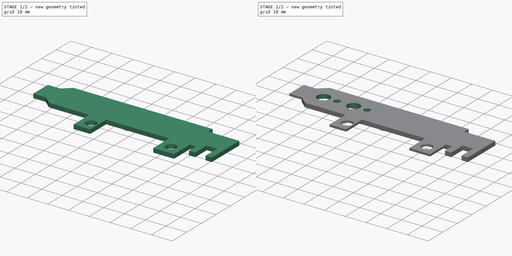
[diagram: build sequence overview — one tinted view per stage of 2, left to right]
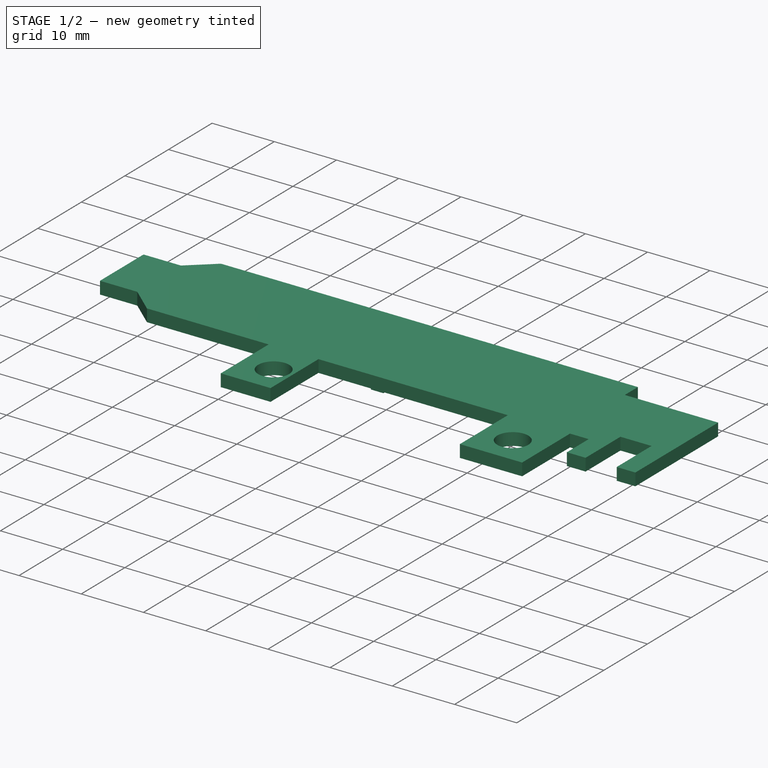
[diagram: stage 1 of 2 — iso view after this stage's code; geometry added in this stage tinted green]
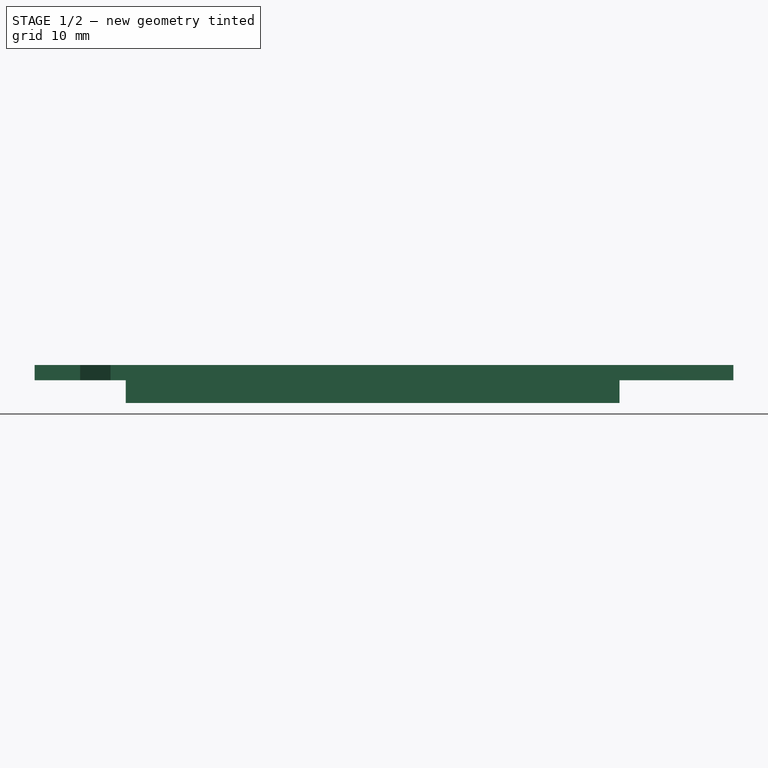
[diagram: stage 1 of 2 — front view after this stage's code; geometry added in this stage tinted green]
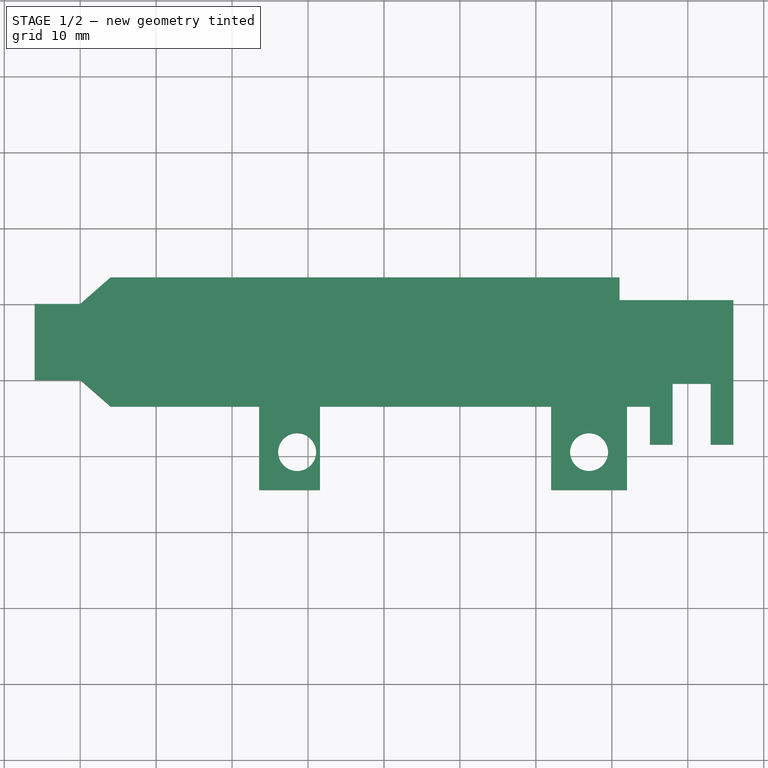
[diagram: stage 1 of 2 — top view after this stage's code; geometry added in this stage tinted green]
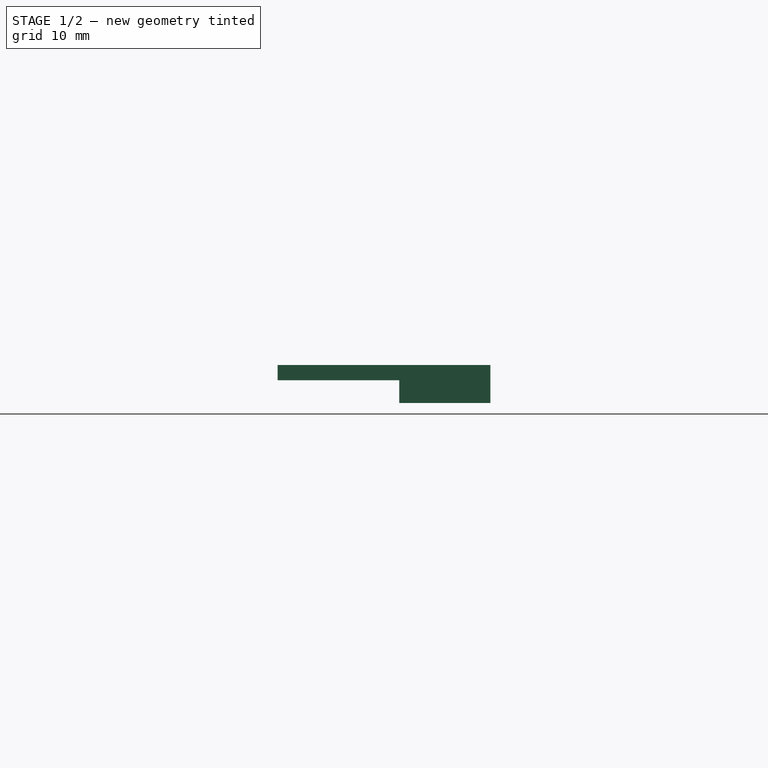
[diagram: stage 1 of 2 — right view after this stage's code; geometry added in this stage tinted green]
FCSTD DOCUMENT  (FreeCAD 0.19R24267 +148 (Git))
Label: Keystone2
License: All rights reserved
LicenseURL: http://en.wikipedia.org/wiki/All_rights_reserved
objects: Sketcher::SketchObject×4, PartDesign::Pad×2, PartDesign::Pocket×2, PartDesign::Body×1
note: 13 computed .brp shape members not serialized (recipe doc carries the construction recipe); baked Part::Feature solids carry a one-line shape summary decoded from their .brp

FEATURE [Sketcher::SketchObject] Sketch
  FullyConstrained = true
  MapMode = 5
  Support = -> [XY_Plane]
  sketch-geometry (32):
    g0: LineSegment StartX=0 StartY=4e-16 StartZ=0 EndX=-6 EndY=4e-16 EndZ=0
    g1: LineSegment StartX=-6 StartY=4e-16 StartZ=0 EndX=-6 EndY=-10 EndZ=0
    g2: LineSegment StartX=-6 StartY=-10 StartZ=0 EndX=0 EndY=-10 EndZ=0
    g3: LineSegment StartX=0 StartY=-10 StartZ=0 EndX=4 EndY=-13.5 EndZ=0
    g4: LineSegment StartX=75 StartY=-13.5 StartZ=0 EndX=75 EndY=-18.5 EndZ=0
    g5: LineSegment StartX=75 StartY=-18.5 StartZ=0 EndX=78 EndY=-18.5 EndZ=0
    g6: LineSegment StartX=78 StartY=-18.5 StartZ=0 EndX=78 EndY=-10.5 EndZ=0
    g7: LineSegment StartX=78 StartY=-10.5 StartZ=0 EndX=83 EndY=-10.5 EndZ=0
    g8: LineSegment StartX=83 StartY=-10.5 StartZ=0 EndX=83 EndY=-18.5 EndZ=0
    g9: LineSegment StartX=83 StartY=-18.5 StartZ=0 EndX=86 EndY=-18.5 EndZ=0
    g10: LineSegment StartX=86 StartY=-18.5 StartZ=0 EndX=86 EndY=0.5 EndZ=0
    g11: LineSegment StartX=86 StartY=0.5 StartZ=0 EndX=71 EndY=0.5 EndZ=0
    g12: LineSegment StartX=71 StartY=0.5 StartZ=0 EndX=71 EndY=3.5 EndZ=0
    g13: LineSegment StartX=71 StartY=3.5 StartZ=0 EndX=4 EndY=3.5 EndZ=0
    g14: LineSegment StartX=4 StartY=3.5 StartZ=0 EndX=0 EndY=4e-16 EndZ=0
    g15: LineSegment StartX=78 StartY=-18.5 StartZ=0 EndX=83 EndY=-18.5 EndZ=0
    g16: LineSegment StartX=4 StartY=-13.5 StartZ=0 EndX=4 EndY=3.5 EndZ=0
    g17: LineSegment StartX=75 StartY=-13.5 StartZ=0 EndX=72 EndY=-13.5 EndZ=0
    g18: LineSegment StartX=72 StartY=-13.5 StartZ=0 EndX=72 EndY=-24.5 EndZ=0
    g19: LineSegment StartX=72 StartY=-24.5 StartZ=0 EndX=62 EndY=-24.5 EndZ=0
    g20: LineSegment StartX=62 StartY=-24.5 StartZ=0 EndX=62 EndY=-13.5 EndZ=0
    g21: LineSegment StartX=4 StartY=-13.5 StartZ=0 EndX=23.566 EndY=-13.5 EndZ=0
    g22: LineSegment StartX=23.566 StartY=-13.5 StartZ=0 EndX=23.566 EndY=-24.5 EndZ=0
    g23: LineSegment StartX=23.566 StartY=-24.5 StartZ=0 EndX=31.566 EndY=-24.5 EndZ=0
    g24: LineSegment StartX=31.566 StartY=-24.5 StartZ=0 EndX=31.566 EndY=-13.5 EndZ=0
    g25: LineSegment StartX=31.566 StartY=-13.5 StartZ=0 EndX=62 EndY=-13.5 EndZ=0
    g26: LineSegment StartX=4 StartY=-13.5 StartZ=0 EndX=75 EndY=-13.5 EndZ=0
    g27: Circle CenterX=28.566 CenterY=-19.5 CenterZ=0 NormalX=0 NormalY=0 NormalZ=1 AngleXU=0 Radius=2.5
    g28: Circle CenterX=67 CenterY=-19.5 CenterZ=0 NormalX=0 NormalY=0 NormalZ=1 AngleXU=0 Radius=2.5
    g29: LineSegment StartX=28.566 StartY=-19.5 StartZ=0 EndX=67 EndY=-19.5 EndZ=0
    g30: LineSegment StartX=62 StartY=-24.5 StartZ=0 EndX=67 EndY=-19.5 EndZ=0
    g31: LineSegment StartX=67 StartY=-19.5 StartZ=0 EndX=72 EndY=-24.5 EndZ=0
  constraints (89):
    c: Horizontal(g0)
    c: Coincident(g0,g1)
    c: Vertical(g1)
    c: Coincident(g1,g2)
    c: PointOnObject(g2,g-2)
    c: Horizontal(g2)
    c: Coincident(g2,g3)
    c: Vertical(g4)
    c: Coincident(g4,g5)
    c: Horizontal(g5)
    c: Coincident(g5,g6)
    c: Vertical(g6)
    c: Coincident(g6,g7)
    c: Horizontal(g7)
    c: Coincident(g7,g8)
    c: Coincident(g8,g9)
    c: Horizontal(g9)
    c: Coincident(g9,g10)
    c: Vertical(g10)
    c: Coincident(g10,g11)
    c: Horizontal(g11)
    c: Coincident(g11,g12)
    c: Vertical(g12)
    c: Coincident(g12,g13)
    c: Horizontal(g13)
    c: Coincident(g13,g14)
    c: Coincident(g14,g0)
    c: DistanceX(g3,g4) = 71
    c: DistanceX(g2,g2) = 6
    c: DistanceY(g4,g4) = 5
    c: Vertical(g8)
    c: DistanceX(g7,g7) = 5
    c: DistanceX(g4,g9) = 11
    c: Equal(g5,g9)
    c: Coincident(g15,g5)
    c: Coincident(g15,g8)
    c: Horizontal(g15)
    c: DistanceY(g12,g12) = 3
    c: DistanceX(g11,g4) = 4
    c: DistanceY(g3,g13) = 17
    c: Equal(g3,g14)
    c: Coincident(g16,g3)
    c: Coincident(g16,g13)
    c: Vertical(g16)
    c: DistanceY(g1,g1) = 10
    c: Coincident(g0,g-1)
    c: Coincident(g17,g4)
    c: Horizontal(g17)
    c: Coincident(g18,g17)
    c: Vertical(g18)
    c: Coincident(g18,g19)
    c: Horizontal(g19)
    c: Coincident(g19,g20)
    c: Vertical(g20)
    c: Coincident(g21,g3)
    c: Horizontal(g21)
    c: Coincident(g22,g21)
    c: Vertical(g22)
    c: Coincident(g23,g22)
    c: Horizontal(g23)
    c: Coincident(g24,g23)
    c: Vertical(g24)
    c: Coincident(g25,g24)
    c: Coincident(g25,g20)
    c: Horizontal(g25)
    c: Coincident(g26,g3)
    c: Coincident(g26,g4)
    c: Horizontal(g26)
    c: PointOnObject(g24,g26)
    c: Diameter(g27) = 5
    c: Diameter(g28) = 5
    c: DistanceX(g28,g11) = 4
    c: DistanceX(g27,g28) = 38.434
    c: DistanceX(g21,g27) = 5
    c: DistanceX(g27,g24) = 3
    c: DistanceY(g22,g27) = 5
    c: Coincident(g29,g27)
    c: Coincident(g29,g28)
    c: Horizontal(g29)
    c: DistanceY(g28,g17) = 6
    c: Equal(g18,g24)
    c: Coincident(g30,g19)
    c: Coincident(g30,g28)
    c: Coincident(g31,g28)
    c: Coincident(g31,g18)
    c: Equal(g31,g30)
    c: DistanceY(g6,g6) = 8
    c: DistanceX(g19,g19) = 10
    c: DistanceX(g1,g3) = 10
FEATURE [PartDesign::Pad] Pad
  Direction = (0,0,1)
  Length = 2
  Length2 = 10
  Profile = -> Sketch
  Type = 0
FEATURE [Sketcher::SketchObject] Sketch003
  ExternalGeometry = -> [Pad]
  FullyConstrained = true
  MapMode = 5
  Placement = pos=(0,0,0) rot=(1,0,0;3.14159rad)
  Support = -> [Pad]
  sketch-geometry (11):
    g0: LineSegment StartX=6 StartY=-3.5 StartZ=0 EndX=71 EndY=-3.5 EndZ=0
    g1: LineSegment StartX=71 StartY=-3.5 StartZ=0 EndX=71 EndY=8.5 EndZ=0
    g2: LineSegment StartX=36.5 StartY=8.5 StartZ=0 EndX=36.5 EndY=-1.5 EndZ=0
    g3: LineSegment StartX=36.5 StartY=-1.5 StartZ=0 EndX=6 EndY=-1.5 EndZ=0
    g4: LineSegment StartX=69 StartY=8.5 StartZ=0 EndX=69 EndY=-1.5 EndZ=0
    g5: LineSegment StartX=69 StartY=-1.5 StartZ=0 EndX=38.5 EndY=-1.5 EndZ=0
    g6: LineSegment StartX=38.5 StartY=-1.5 StartZ=0 EndX=38.5 EndY=8.5 EndZ=0
    g7: LineSegment StartX=38.5 StartY=8.5 StartZ=0 EndX=36.5 EndY=8.5 EndZ=0
    g8: LineSegment StartX=69 StartY=8.5 StartZ=0 EndX=71 EndY=8.5 EndZ=0
    g9: LineSegment StartX=38.5 StartY=8.5 StartZ=0 EndX=69 EndY=8.5 EndZ=0
    g10: LineSegment StartX=6 StartY=-3.5 StartZ=0 EndX=6 EndY=-1.5 EndZ=0
  constraints (31):
    c: Coincident(g0,g-3)
    c: Coincident(g1,g0)
    c: Vertical(g1)
    c: Coincident(g2,g3)
    c: Horizontal(g3)
    c: Vertical(g2)
    c: Coincident(g4,g5)
    c: Coincident(g5,g6)
    c: Horizontal(g5)
    c: Vertical(g4)
    c: Vertical(g6)
    c: DistanceX(g-3,g3) = 2
    c: DistanceX(g2,g5) = 2
    c: DistanceX(g4,g0) = 2
    c: DistanceY(g0,g4) = 2
    c: DistanceY(g-3,g3) = 2
    c: Equal(g3,g5)
    c: Coincident(g7,g6)
    c: Horizontal(g7)
    c: Coincident(g8,g4)
    c: Coincident(g7,g2)
    c: Coincident(g9,g6)
    c: Coincident(g9,g4)
    c: Horizontal(g9)
    c: Coincident(g8,g1)
    c: Horizontal(g8)
    c: DistanceY(g0,g1) = 12
    c: Coincident(g10,g0)
    c: Vertical(g10)
    c: Coincident(g10,g3)
    c: PointOnObject(g0,g-3)
FEATURE [PartDesign::Pad] Pad001
  BaseFeature = -> Pad
  Direction = (1,1,1)
  Length = 3
  Length2 = 100
  Profile = -> Sketch003
  Type = 0
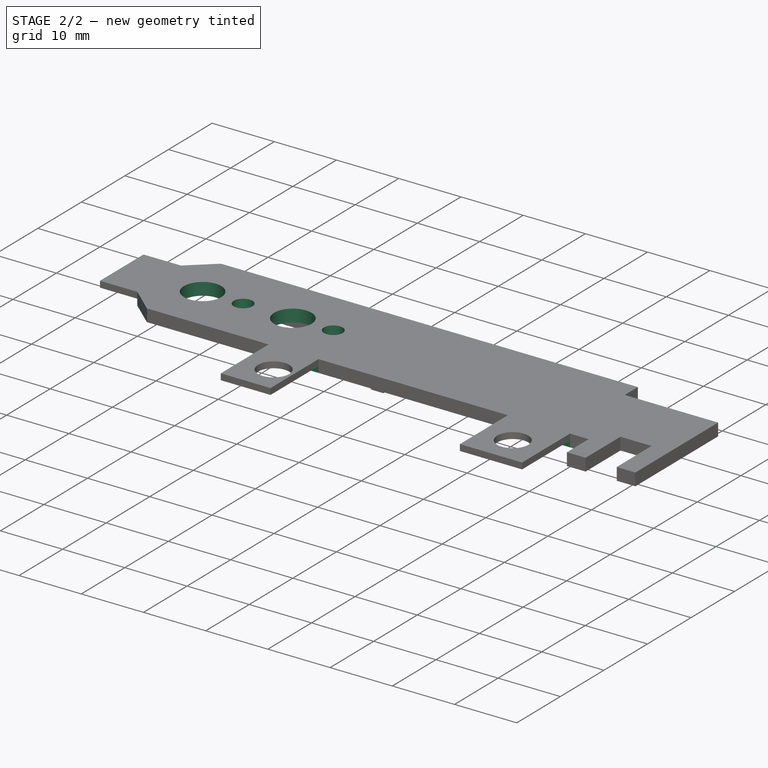
[diagram: stage 2 of 2 — iso view after this stage's code; geometry added in this stage tinted green]
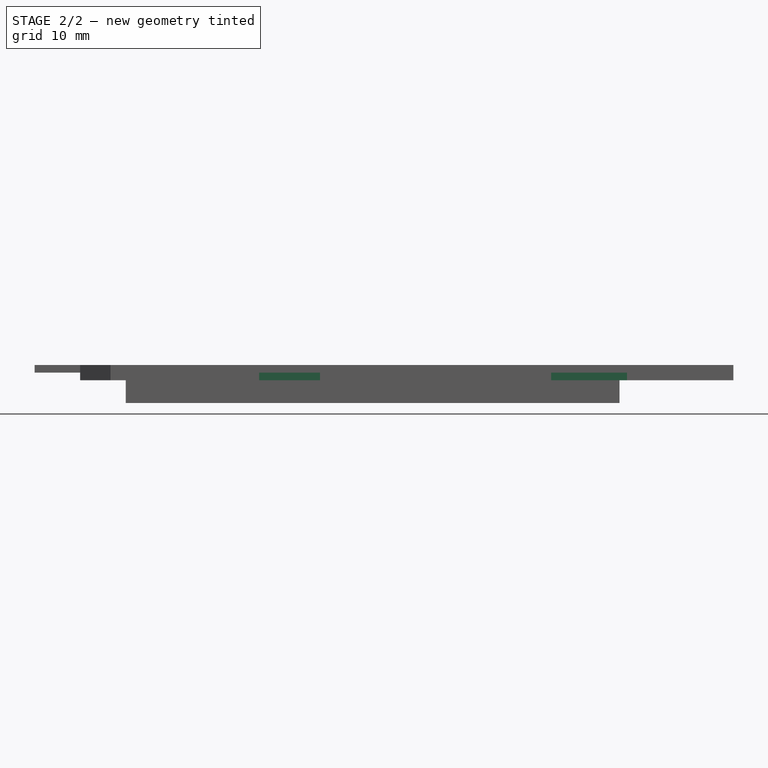
[diagram: stage 2 of 2 — front view after this stage's code; geometry added in this stage tinted green]
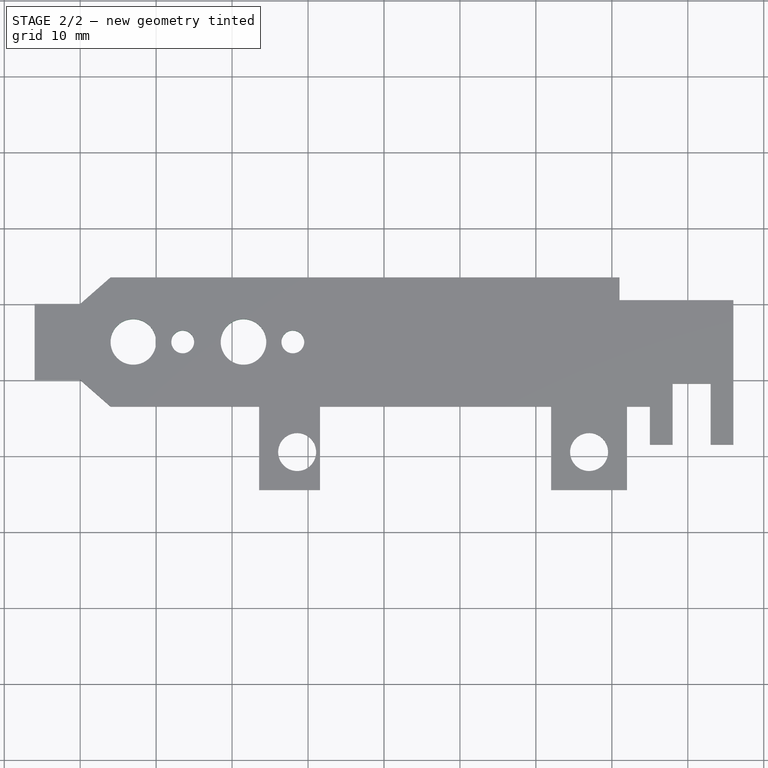
[diagram: stage 2 of 2 — top view after this stage's code; geometry added in this stage tinted green]
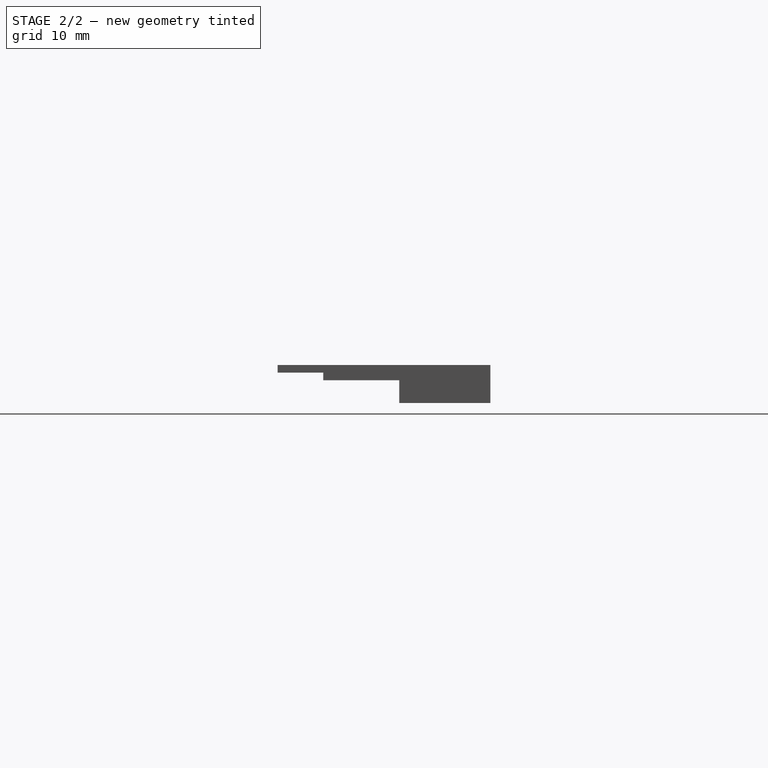
[diagram: stage 2 of 2 — right view after this stage's code; geometry added in this stage tinted green]
FEATURE [Sketcher::SketchObject] Sketch004
  ExternalGeometry = -> [Pad001]
  FullyConstrained = true
  MapMode = 5
  Placement = pos=(0,0,0) rot=(1,0,0;3.14159rad)
  Support = -> [Pad001]
  sketch-geometry (14):
    g0: LineSegment StartX=0 StartY=0 StartZ=0 EndX=-6 EndY=0 EndZ=0
    g1: LineSegment StartX=-6 StartY=0 StartZ=0 EndX=-6 EndY=10 EndZ=0
    g2: LineSegment StartX=-6 StartY=10 StartZ=0 EndX=0 EndY=10 EndZ=0
    g3: LineSegment StartX=0 StartY=10 StartZ=0 EndX=0 EndY=0 EndZ=0
    g4: LineSegment StartX=72 StartY=13.5 StartZ=0 EndX=72 EndY=18.5 EndZ=0
    g5: LineSegment StartX=75 StartY=18.5 StartZ=0 EndX=72 EndY=18.5 EndZ=0
    g6: LineSegment StartX=23.566 StartY=24.5 StartZ=0 EndX=31.566 EndY=24.5 EndZ=0
    g7: LineSegment StartX=31.566 StartY=24.5 StartZ=0 EndX=31.566 EndY=13.5 EndZ=0
    g8: LineSegment StartX=31.566 StartY=13.5 StartZ=0 EndX=23.566 EndY=13.5 EndZ=0
    g9: LineSegment StartX=23.566 StartY=13.5 StartZ=0 EndX=23.566 EndY=24.5 EndZ=0
    g10: LineSegment StartX=62 StartY=24.5 StartZ=0 EndX=72 EndY=24.5 EndZ=0
    g11: LineSegment StartX=72 StartY=24.5 StartZ=0 EndX=72 EndY=13.5 EndZ=0
    g12: LineSegment StartX=72 StartY=13.5 StartZ=0 EndX=62 EndY=13.5 EndZ=0
    g13: LineSegment StartX=62 StartY=13.5 StartZ=0 EndX=62 EndY=24.5 EndZ=0
  constraints (35):
    c: Coincident(g0,g1)
    c: Coincident(g1,g2)
    c: Coincident(g2,g3)
    c: Coincident(g3,g0)
    c: Horizontal(g0)
    c: Horizontal(g2)
    c: Vertical(g1)
    c: Vertical(g3)
    c: Coincident(g0,g-1)
    c: Coincident(g1,g-4)
    c: Coincident(g4,g-5)
    c: Coincident(g5,g-6)
    c: Coincident(g5,g4)
    c: Vertical(g4)
    c: Horizontal(g5)
    c: Coincident(g6,g7)
    c: Coincident(g7,g8)
    c: Coincident(g8,g9)
    c: Coincident(g9,g6)
    c: Horizontal(g6)
    c: Horizontal(g8)
    c: Vertical(g7)
    c: Vertical(g9)
    c: Coincident(g6,g-11)
    c: Coincident(g7,g-10)
    c: Coincident(g10,g11)
    c: Coincident(g11,g12)
    c: Coincident(g12,g13)
    c: Coincident(g13,g10)
    c: Horizontal(g10)
    c: Horizontal(g12)
    c: Vertical(g11)
    c: Vertical(g13)
    c: Coincident(g10,g-9)
    c: Coincident(g11,g4)
FEATURE [PartDesign::Pocket] Pocket
  BaseFeature = -> Pad001
  Length = 1
  Length2 = 100
  Profile = -> Sketch004
  Type = 0
FEATURE [Sketcher::SketchObject] Sketch005
  ExternalGeometry = -> [Pocket]
  FullyConstrained = true
  MapMode = 5
  Placement = pos=(0,0,0) rot=(1,0,0;3.14159rad)
  Support = -> [Pocket]
  sketch-geometry (10):
    g0: Circle CenterX=7 CenterY=5 CenterZ=0 NormalX=0 NormalY=0 NormalZ=1 AngleXU=0 Radius=3
    g1: Circle CenterX=13.5 CenterY=5 CenterZ=0 NormalX=0 NormalY=0 NormalZ=1 AngleXU=0 Radius=1.5
    g2: Circle CenterX=21.5 CenterY=5 CenterZ=0 NormalX=0 NormalY=0 NormalZ=1 AngleXU=0 Radius=3
    g3: Circle CenterX=28 CenterY=5 CenterZ=0 NormalX=0 NormalY=0 NormalZ=1 AngleXU=0 Radius=1.5
    g4: LineSegment StartX=7 StartY=5 StartZ=0 EndX=13.5 EndY=5 EndZ=0
    g5: LineSegment StartX=21.5 StartY=5 StartZ=0 EndX=28 EndY=5 EndZ=0
    g6: LineSegment StartX=13.5 StartY=5 StartZ=0 EndX=21.5 EndY=5 EndZ=0
    g7: LineSegment StartX=4 StartY=13.5 StartZ=0 EndX=7 EndY=5 EndZ=0
    g8: LineSegment StartX=7 StartY=5 StartZ=0 EndX=4 EndY=-3.5 EndZ=0
    g9: LineSegment StartX=7 StartY=5 StartZ=0 EndX=4 EndY=5 EndZ=0
  constraints (25):
    c: Equal(g0,g2)
    c: Diameter(g0) = 6
    c: Equal(g1,g3)
    c: Diameter(g1) = 3
    c: Coincident(g4,g0)
    c: Coincident(g4,g1)
    c: Coincident(g5,g2)
    c: Coincident(g5,g3)
    c: Horizontal(g5)
    c: Horizontal(g4)
    c: Equal(g4,g5)
    c: DistanceX(g4,g4) = 6.5
    c: Coincident(g6,g1)
    c: Coincident(g6,g2)
    c: Horizontal(g6)
    c: Coincident(g7,g-4)
    c: Coincident(g7,g0)
    c: Coincident(g8,g0)
    c: Coincident(g8,g-3)
    c: Equal(g8,g7)
    c: Coincident(g9,g0)
    c: PointOnObject(g9,g0)
    c: Horizontal(g9)
    c: Vertical(g9,g8)
    c: DistanceX(g6,g6) = 8
FEATURE [PartDesign::Pocket] Pocket001
  BaseFeature = -> Pocket
  Length = 5
  Length2 = 100
  Profile = -> Sketch005
  Type = 0
FEATURE [PartDesign::Body] Body
  Group = -> [Sketch,Pad,Sketch003,Pad001,Sketch004,Pocket,Sketch005,Pocket001]
  Origin = -> Origin
  Tip = -> Pocket001
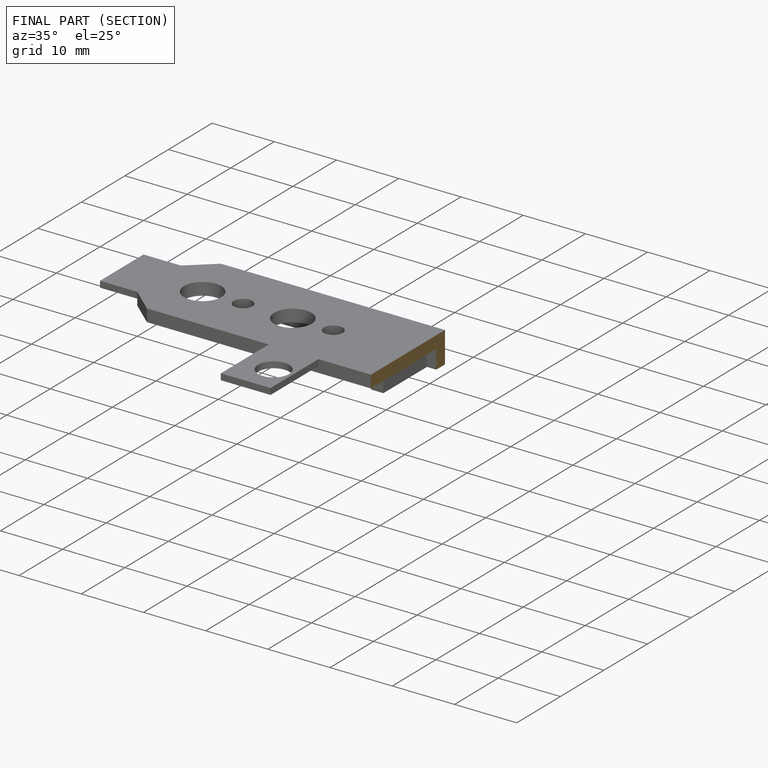
[diagram: finished part — half-section view (interior)]
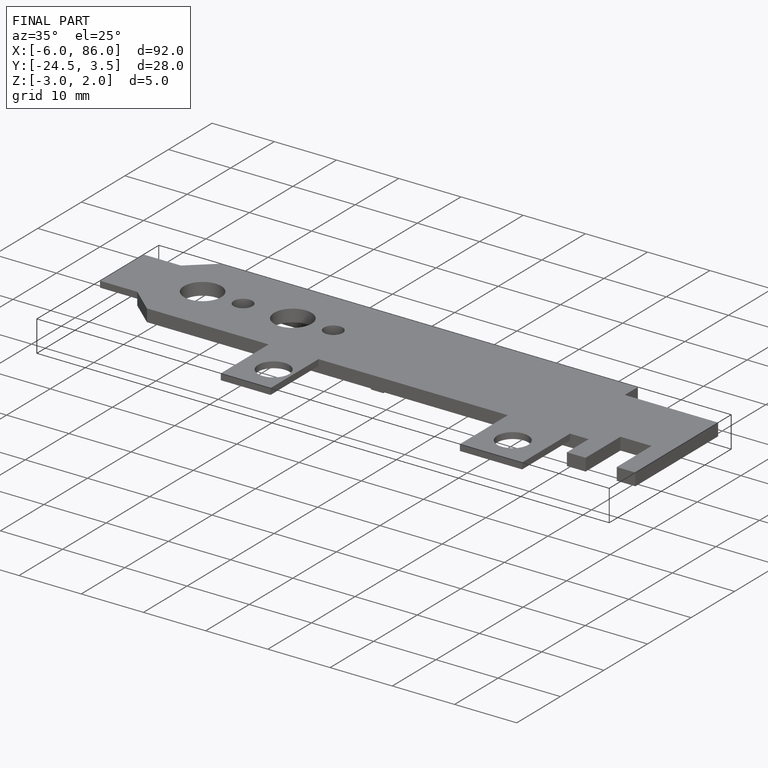
[diagram: finished part — iso view with bounding-box wireframe]
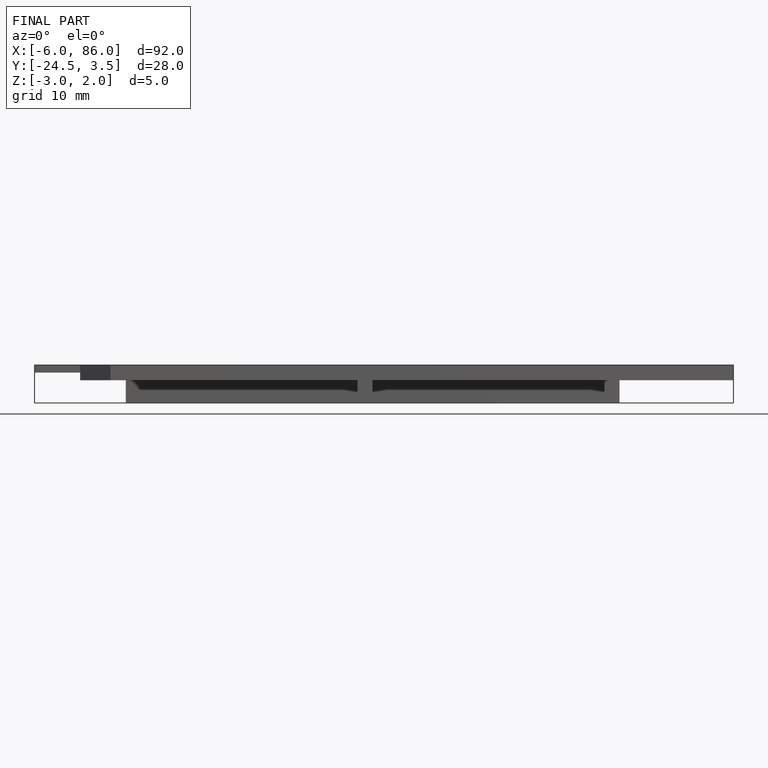
[diagram: finished part — front view with bounding-box wireframe]
